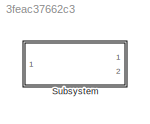
MODEL slx_3feac37662c3
KIND model
CONFIG AbsTol = auto
CONFIG EnableMultiTasking = off
CONFIG FixedStep = auto
CONFIG MaxStep = auto
CONFIG MinStep = auto
CONFIG RelTol = 1e-3
CONFIG SampleTimeConstraint = Unconstrained
CONFIG SolverName = FixedStepDiscrete
CONFIG StartTime = 0.0
CONFIG StopTime = 10.0
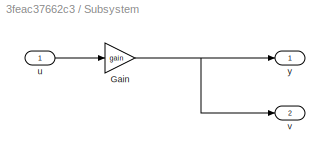
BLOCK [SubSystem] Subsystem
  Ports = [1, 2]
  RequestExecContextInheritance = off
BLOCK [Gain] Subsystem/Gain
  Gain = gain
BLOCK [Inport] Subsystem/u
BLOCK [Outport] Subsystem/v
  Port = 2
BLOCK [Outport] Subsystem/y
NET Subsystem/Gain:1 -> Subsystem/v:1, Subsystem/y:1
LINE Subsystem/u:1 -> Subsystem/Gain:1
note: NET lines group one-source signal fan-out (src -> all destinations, sorted); 1:1 wires keep LINE
